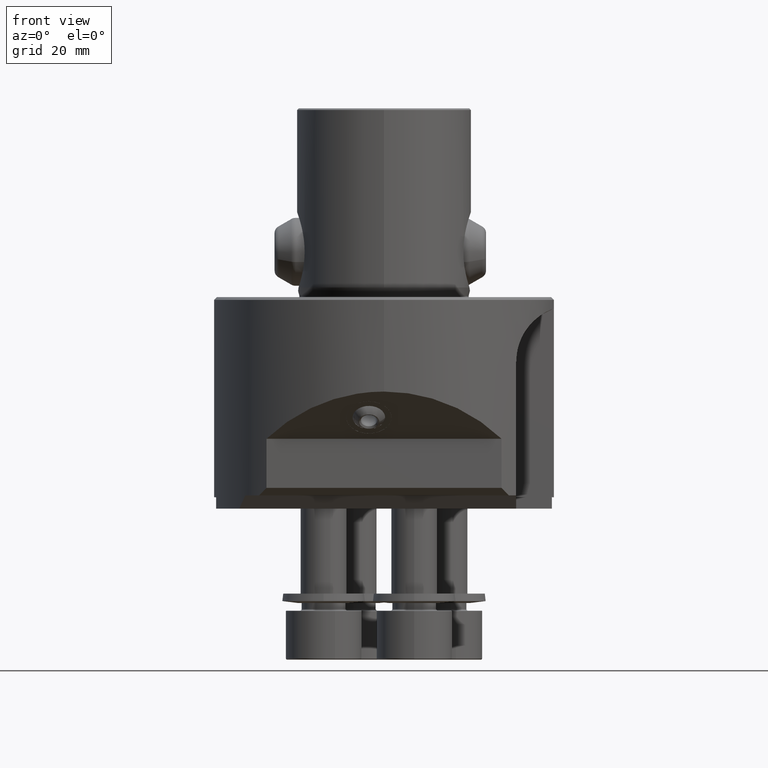
[diagram: clean part render]
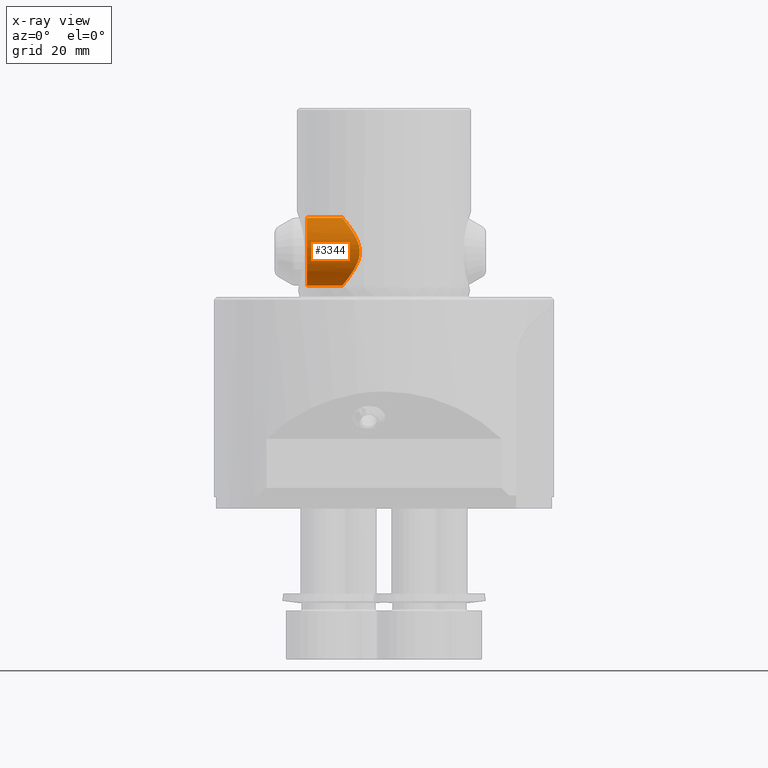
[diagram: x-ray — body ghosted, one internal face saturated and labeled with its STEP entity id]
A machine part, front view, then the same camera in x-ray: the body is ghosted and one INTERNAL B-rep face — a face not visible from any outside direction — is saturated and labeled: STEP entity #3344.
In plain terms, the highlighted cylindrical surface (edge-blend (fillet) strip) has radius 9 mm, axis along (-1, 0, -0).
Its self-contained STEP definition (entity closure, byte-faithful):
#2646=VERTEX_POINT('NONE',#6799);
#3344=ADVANCED_FACE('NONE',(#7586),#7587,.F.);
#3536=EDGE_CURVE('NONE',#2646,#5114,#7807,.T.);
#3652=EDGE_CURVE('NONE',#5396,#4100,#7935,.T.);
#4100=VERTEX_POINT('NONE',#8447);
#5038=EDGE_CURVE('NONE',#5114,#4100,#9504,.T.);
#5114=VERTEX_POINT('NONE',#9589);
#5396=VERTEX_POINT('NONE',#9907);
#5456=EDGE_CURVE('NONE',#5396,#2646,#9975,.T.);
#6799=CARTESIAN_POINT('',(-11.05,2.76661166694275E-014,3.00000000000004));
#7586=FACE_OUTER_BOUND('',#12810,.T.);
#7587=CYLINDRICAL_SURFACE('',#12811,9.0);
#7807=LINE('',#13107,#13108);
#7935=LINE('',#13278,#13279);
#8447=CARTESIAN_POINT('',(-20.4134572681199,4.86097561230895E-014,21.0000000000001));
#9504=CIRCLE('',#15701,9.0);
#9589=CARTESIAN_POINT('',(-20.4134572681199,5.29200812392438E-014,3.00000000000004));
#9907=CARTESIAN_POINT('',(-11.05,2.6212869577742E-014,21.0000000000001));
#9975=B_SPLINE_CURVE_WITH_KNOTS('',3,(#16601,#16602,#16603,#16604,#16605,#16606,#16607,#16608,#16609,#16610,#16611,#16612,#16613,#16614,#16615,#16616,#16617,#16618,#16619,#16620,#16621,#16622,#16623,#16624,#16625,#16626,#16627,#16628,#16629,#16630,#16631,#16632,#16633,#16634,#16635,#16636,#16637,#16638,#16639,#16640,#16641,#16642,#16643,#16644,#16645,#16646,#16647,#16648,#16649,#16650),.UNSPECIFIED.,.F.,.F.,(4,2,2,2,2,2,2,2,2,2,2,2,2,2,2,2,2,2,2,2,2,2,2,2,4),(3.84018959942462E-019,0.00186917033378391,0.00280375550067587,0.00373834066756782,0.00467292583445978,0.00560751100135173,0.00747668133513563,0.00841126650202759,0.00934585166891955,0.0112150220027035,0.0130841923364874,0.0140187775033794,0.0149533626702713,0.0158879478371633,0.0168225330040552,0.0177571181709472,0.0186917033378392,0.0205608736716231,0.021495458838515,0.022430044005407,0.0242992143391909,0.0252337995060829,0.0261683846729748,0.0280375550067588,0.0299067253405427),.UNSPECIFIED.);
#12810=EDGE_LOOP('',(#19495,#19496,#19497,#19498));
#12811=AXIS2_PLACEMENT_3D('',#19499,#19500,#19501);
#13107=CARTESIAN_POINT('',(-39.6052112120016,9.54124642956598E-014,3.00000000000004));
#13108=VECTOR('',#19826,1000.0);
#13278=CARTESIAN_POINT('',(-39.6052112120016,9.43103185772197E-014,21.0000000000001));
#13279=VECTOR('',#19964,1000.0);
#15701=AXIS2_PLACEMENT_3D('',#21970,#21971,#21972);
#16601=CARTESIAN_POINT('',(-11.05,2.6212869577742E-014,21.0000000000001));
#16602=CARTESIAN_POINT('',(-11.05,-0.633548264028267,21.0000000000001));
#16603=CARTESIAN_POINT('',(-10.9959665072097,-1.25136189996911,20.9338890739386));
#16604=CARTESIAN_POINT('',(-10.841846790978,-2.15650867585852,20.7432568576292));
#16605=CARTESIAN_POINT('',(-10.7776944669305,-2.45648819784463,20.6636788430414));
#16606=CARTESIAN_POINT('',(-10.6280454572978,-3.03935553140226,20.4767908618325));
#16607=CARTESIAN_POINT('',(-10.5430156805726,-3.32126862900442,20.3700665768516));
#16608=CARTESIAN_POINT('',(-10.3550124812189,-3.86777991367259,20.1319812067126));
#16609=CARTESIAN_POINT('',(-10.2520291491327,-4.13237130016763,20.0006126926491));
#16610=CARTESIAN_POINT('',(-10.0300425913635,-4.64530298823976,19.7141076066955));
#16611=CARTESIAN_POINT('',(-9.9105326232086,-4.89440649108114,19.5582885725375));
#16612=CARTESIAN_POINT('',(-9.53837631892706,-5.60422735986037,19.0657200540175));
#16613=CARTESIAN_POINT('',(-9.27027029066048,-6.03284004585383,18.701940248406));
#16614=CARTESIAN_POINT('',(-8.85156763062647,-6.61890421827025,18.1047438502676));
#16615=CARTESIAN_POINT('',(-8.70922707613216,-6.80468412670959,17.8969915270288));
#16616=CARTESIAN_POINT('',(-8.42147104563557,-7.1577362172302,17.4630620881236));
#16617=CARTESIAN_POINT('',(-8.27666157969473,-7.32418023132899,17.2377346174891));
#16618=CARTESIAN_POINT('',(-7.84956535609618,-7.78869665499404,16.5438006507128));
#16619=CARTESIAN_POINT('',(-7.57174072612544,-8.05514823384216,16.0546496414871));
#16620=CARTESIAN_POINT('',(-7.0654269819522,-8.50272969437103,15.0048601512954));
#16621=CARTESIAN_POINT('',(-6.83506682610989,-8.68484531352409,14.4370555169528));
#16622=CARTESIAN_POINT('',(-6.58949221898623,-8.87083065193036,13.5491313607666));
#16623=CARTESIAN_POINT('',(-6.52379394803722,-8.91883918711197,13.2460196766866));
#16624=CARTESIAN_POINT('',(-6.4338799135687,-8.98391725138808,12.6224855825365));
#16625=CARTESIAN_POINT('',(-6.41093536295073,-9.00013376711102,12.3080858793517));
#16626=CARTESIAN_POINT('',(-6.41131328217722,-8.99986455740319,11.684147687446));
#16627=CARTESIAN_POINT('',(-6.43438621937512,-8.98355416003284,11.3730124519622));
#16628=CARTESIAN_POINT('',(-6.52417207068932,-8.91856211271555,10.7523587962589));
#16629=CARTESIAN_POINT('',(-6.5908345680487,-8.86983546531104,10.4452333808726));
#16630=CARTESIAN_POINT('',(-6.75481966467384,-8.74559848053925,9.85389011492148));
#16631=CARTESIAN_POINT('',(-6.85249495222088,-8.66980904037656,9.56673769986046));
#16632=CARTESIAN_POINT('',(-7.07091077409828,-8.49261424365599,9.00636382866474));
#16633=CARTESIAN_POINT('',(-7.19238563897738,-8.39053469419871,8.73174589711467));
#16634=CARTESIAN_POINT('',(-7.57498840731631,-8.05220374595085,7.93893558583307));
#16635=CARTESIAN_POINT('',(-7.85357838003252,-7.78460831293623,7.44936976888959));
#16636=CARTESIAN_POINT('',(-8.27967948524608,-7.32075731129525,6.75751939339309));
#16637=CARTESIAN_POINT('',(-8.42327281392191,-7.15560610891528,6.53417062152338));
#16638=CARTESIAN_POINT('',(-8.71056466269562,-6.80296163010639,6.10104224122058));
#16639=CARTESIAN_POINT('',(-8.8544092585146,-6.61513772150491,5.89112815455891));
#16640=CARTESIAN_POINT('',(-9.27450455957353,-6.02648377923934,5.2921730454217));
#16641=CARTESIAN_POINT('',(-9.54196342913002,-5.59777349684891,4.92948864591736));
#16642=CARTESIAN_POINT('',(-9.91135975657549,-4.89263286247349,4.44063869062983));
#16643=CARTESIAN_POINT('',(-10.0292004830135,-4.64716576757929,4.28698412687893));
#16644=CARTESIAN_POINT('',(-10.2518403945989,-4.13289009332565,3.99962607080962));
#16645=CARTESIAN_POINT('',(-10.3560980098284,-3.86492091132329,3.86663585156165));
#16646=CARTESIAN_POINT('',(-10.6384593536604,-3.04322216414435,3.50908114823794));
#16647=CARTESIAN_POINT('',(-10.7891056386418,-2.46621976951438,3.32197932081597));
#16648=CARTESIAN_POINT('',(-10.9972959955604,-1.24359206307643,3.06446634830674));
#16649=CARTESIAN_POINT('',(-11.05,-0.624625195023064,3.00000000000003));
#16650=CARTESIAN_POINT('',(-11.05,2.76661166694275E-014,3.00000000000004));
#19495=ORIENTED_EDGE('',*,*,#5456,.T.);
#19496=ORIENTED_EDGE('',*,*,#3536,.T.);
#19497=ORIENTED_EDGE('',*,*,#5038,.T.);
#19498=ORIENTED_EDGE('',*,*,#3652,.F.);
#19499=CARTESIAN_POINT('',(-39.6052112120016,9.43103185772197E-014,12.0));
#19500=DIRECTION('',(-1.0,2.38126033648423E-015,-0.0));
#19501=DIRECTION('',(0.0,0.0,1.0));
#19826=DIRECTION('',(-1.0,2.38126033648423E-015,1.07404554117737E-016));
#19964=DIRECTION('',(-1.0,2.38126033648423E-015,1.07404554117737E-016));
#21970=CARTESIAN_POINT('',(-20.4134572681199,4.86097561230895E-014,12.0));
#21971=DIRECTION('',(-1.0,2.38126033648423E-015,0.0));
#21972=DIRECTION('',(0.0,0.0,1.0));